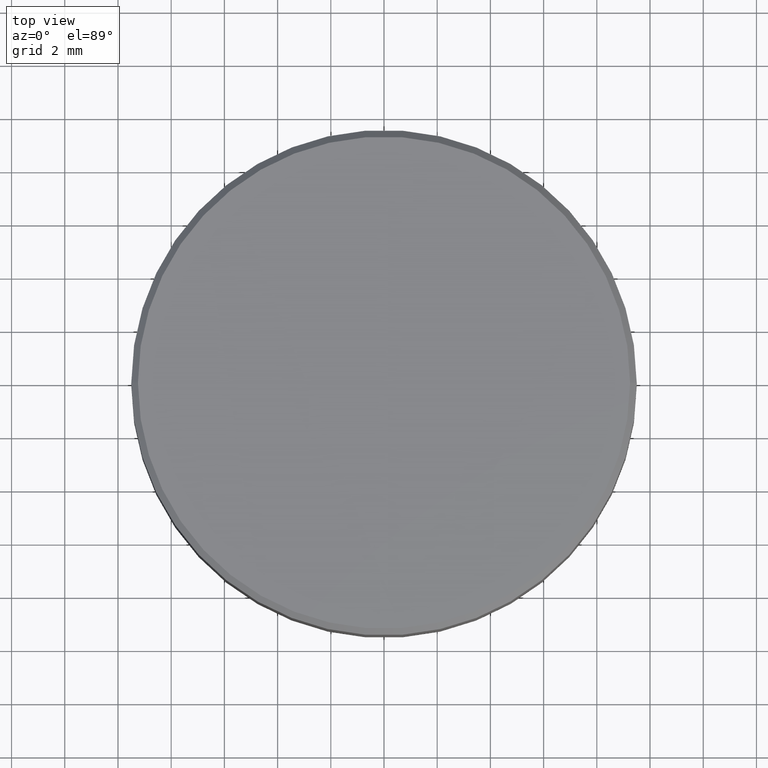
[diagram: clean part render]
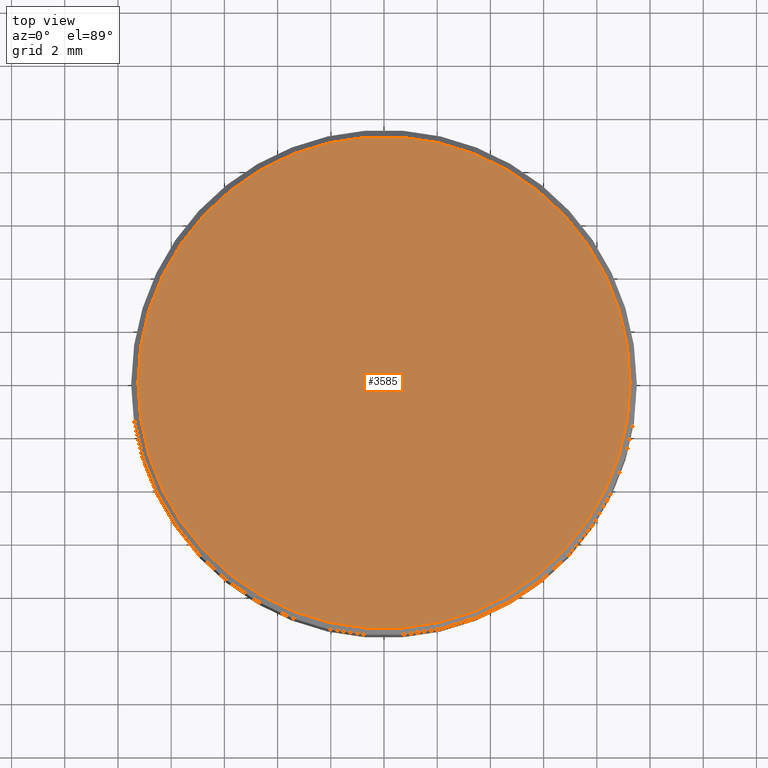
[diagram: same view with one face highlighted and labeled with its STEP entity id]
A machine part, top view. The second image highlights one B-rep face of the part: STEP entity #3585.
In plain terms, the highlighted planar face has unit normal (0, 0, 1).
Its self-contained STEP definition (entity closure, byte-faithful):
#272 = EDGE_CURVE ( 'NONE', #7635, #926, #5651, .T. ) ;
#354 = DIRECTION ( 'NONE',  ( 1.000000000000000000, 0.0000000000000000000, 0.0000000000000000000 ) ) ;
#642 = CARTESIAN_POINT ( 'NONE',  ( 0.0000000000000000000, 0.0000000000000000000, 0.1181102362204724500 ) ) ;
#820 = DIRECTION ( 'NONE',  ( 0.0000000000000000000, 0.0000000000000000000, 1.000000000000000000 ) ) ;
#869 = CIRCLE ( 'NONE', #2702, 0.3641732283464568800 ) ;
#905 = ORIENTED_EDGE ( 'NONE', *, *, #4295, .T. ) ;
#926 = VERTEX_POINT ( 'NONE', #7121 ) ;
#1266 = DIRECTION ( 'NONE',  ( 1.000000000000000000, 0.0000000000000000000, -0.0000000000000000000 ) ) ;
#1850 = AXIS2_PLACEMENT_3D ( 'NONE', #9171, #6012, #1266 ) ;
#2152 = CARTESIAN_POINT ( 'NONE',  ( 0.3641732283464568800, 4.520103835435605500E-017, 0.1181102362204724500 ) ) ;
#2238 = FACE_OUTER_BOUND ( 'NONE', #3061, .T. ) ;
#2702 = AXIS2_PLACEMENT_3D ( 'NONE', #5544, #820, #6356 ) ;
#3061 = EDGE_LOOP ( 'NONE', ( #905, #7990 ) ) ;
#3585 = ADVANCED_FACE ( 'NONE', ( #2238 ), #5199, .T. ) ;
#4295 = EDGE_CURVE ( 'NONE', #926, #7635, #869, .T. ) ;
#5199 = PLANE ( 'NONE',  #1850 ) ;
#5544 = CARTESIAN_POINT ( 'NONE',  ( 0.0000000000000000000, 0.0000000000000000000, 0.1181102362204724500 ) ) ;
#5651 = CIRCLE ( 'NONE', #9643, 0.3641732283464568800 ) ;
#6012 = DIRECTION ( 'NONE',  ( 0.0000000000000000000, 0.0000000000000000000, 1.000000000000000000 ) ) ;
#6356 = DIRECTION ( 'NONE',  ( 1.000000000000000000, 0.0000000000000000000, 0.0000000000000000000 ) ) ;
#7121 = CARTESIAN_POINT ( 'NONE',  ( -0.3641732283464568800, 0.0000000000000000000, 0.1181102362204724500 ) ) ;
#7635 = VERTEX_POINT ( 'NONE', #2152 ) ;
#7990 = ORIENTED_EDGE ( 'NONE', *, *, #272, .T. ) ;
#8432 = DIRECTION ( 'NONE',  ( 0.0000000000000000000, 0.0000000000000000000, 1.000000000000000000 ) ) ;
#9171 = CARTESIAN_POINT ( 'NONE',  ( 0.0000000000000000000, 0.0000000000000000000, 0.1181102362204724500 ) ) ;
#9643 = AXIS2_PLACEMENT_3D ( 'NONE', #642, #8432, #354 ) ;